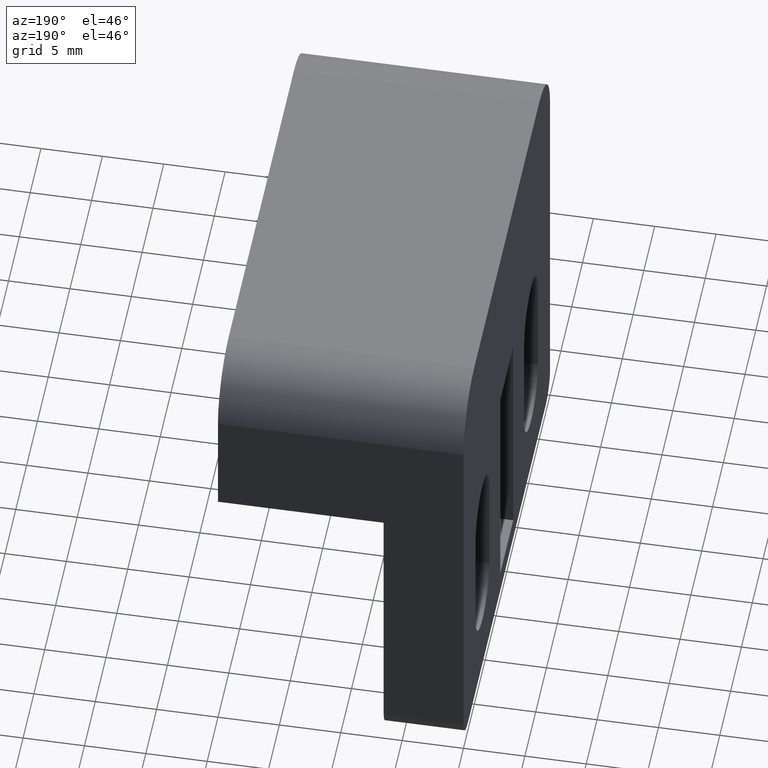
[diagram: clean part render]
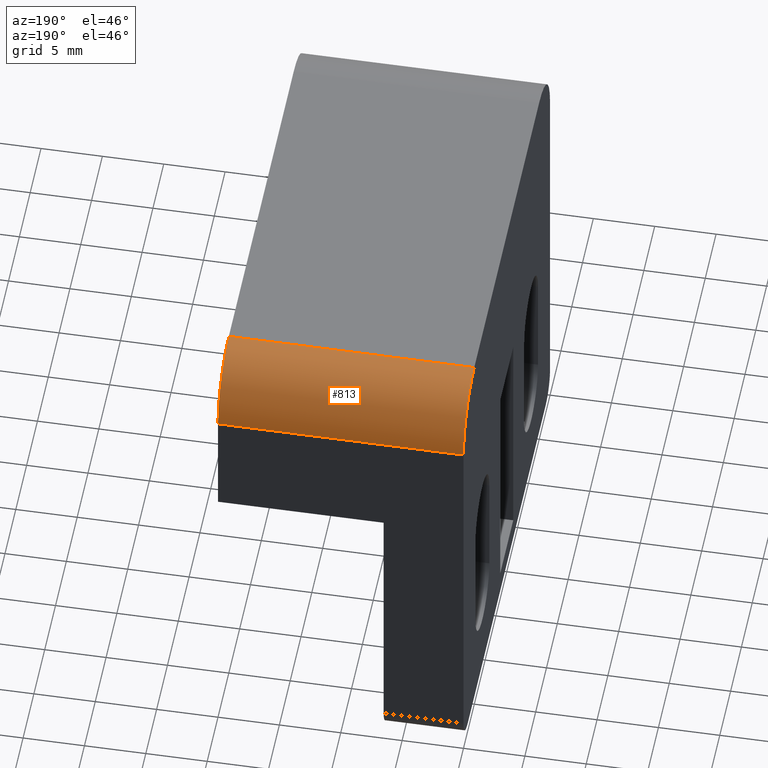
[diagram: same view with one face highlighted and labeled with its STEP entity id]
A machine part, auxiliary view. The second image highlights one B-rep face of the part: STEP entity #813.
In plain terms, the highlighted cylindrical surface (partial cylindrical patch) has radius 5 mm, axis along (1, 0, -0).
Its self-contained STEP definition (entity closure, byte-faithful):
#50=CIRCLE('',#885,5.);
#53=CIRCLE('',#890,5.);
#69=CYLINDRICAL_SURFACE('',#889,5.);
#107=FACE_OUTER_BOUND('',#156,.T.);
#156=EDGE_LOOP('',(#693,#694,#695,#696));
#236=LINE('',#1343,#318);
#237=LINE('',#1344,#319);
#318=VECTOR('',#1106,20.);
#319=VECTOR('',#1107,20.);
#395=VERTEX_POINT('',#1328);
#396=VERTEX_POINT('',#1330);
#399=VERTEX_POINT('',#1340);
#400=VERTEX_POINT('',#1341);
#501=EDGE_CURVE('',#396,#395,#50,.T.);
#506=EDGE_CURVE('',#399,#400,#53,.T.);
#507=EDGE_CURVE('',#400,#396,#236,.T.);
#508=EDGE_CURVE('',#395,#399,#237,.T.);
#693=ORIENTED_EDGE('',*,*,#506,.T.);
#694=ORIENTED_EDGE('',*,*,#507,.T.);
#695=ORIENTED_EDGE('',*,*,#501,.T.);
#696=ORIENTED_EDGE('',*,*,#508,.T.);
#813=ADVANCED_FACE('',(#107),#69,.T.);
#885=AXIS2_PLACEMENT_3D('',#1331,#1092,#1093);
#889=AXIS2_PLACEMENT_3D('',#1339,#1102,#1103);
#890=AXIS2_PLACEMENT_3D('',#1342,#1104,#1105);
#1092=DIRECTION('center_axis',(1.,0.,-1.1686558153949E-16));
#1093=DIRECTION('ref_axis',(6.2803698347351E-16,0.707106781186547,0.707106781186547));
#1102=DIRECTION('center_axis',(1.,0.,-5.55111512312578E-16));
#1103=DIRECTION('ref_axis',(6.2803698347351E-16,0.707106781186547,0.707106781186547));
#1104=DIRECTION('center_axis',(-1.,0.,4.75809867696496E-16));
#1105=DIRECTION('ref_axis',(6.2803698347351E-16,0.707106781186547,0.707106781186547));
#1106=DIRECTION('',(-1.,0.,5.55111512312578E-16));
#1107=DIRECTION('',(1.,0.,-5.55111512312578E-16));
#1328=CARTESIAN_POINT('',(-20.,15.,1.11022302462516E-14));
#1330=CARTESIAN_POINT('',(-20.,20.,-4.99999999999999));
#1331=CARTESIAN_POINT('Origin',(-20.,15.,-4.99999999999999));
#1339=CARTESIAN_POINT('Origin',(-16.3965517241379,15.,-4.99999999999999));
#1340=CARTESIAN_POINT('',(0.,15.,0.));
#1341=CARTESIAN_POINT('',(-2.37904933848248E-15,20.,-5.));
#1342=CARTESIAN_POINT('Origin',(-2.22044604925031E-15,15.,-5.));
#1343=CARTESIAN_POINT('',(-16.3965517241379,20.,-4.99999999999999));
#1344=CARTESIAN_POINT('',(-16.3965517241379,15.,8.88178419700125E-15));